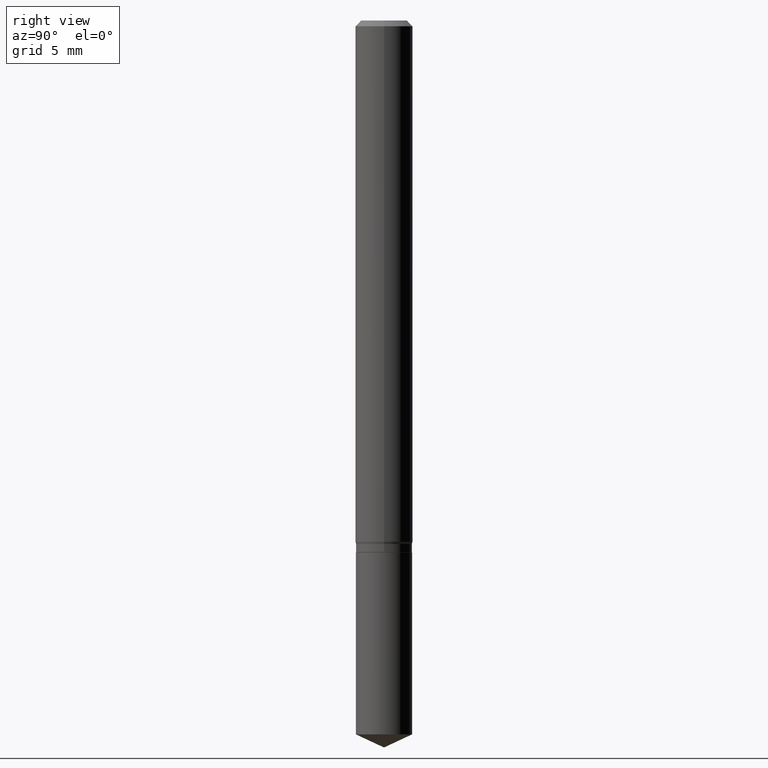
[diagram: clean part render]
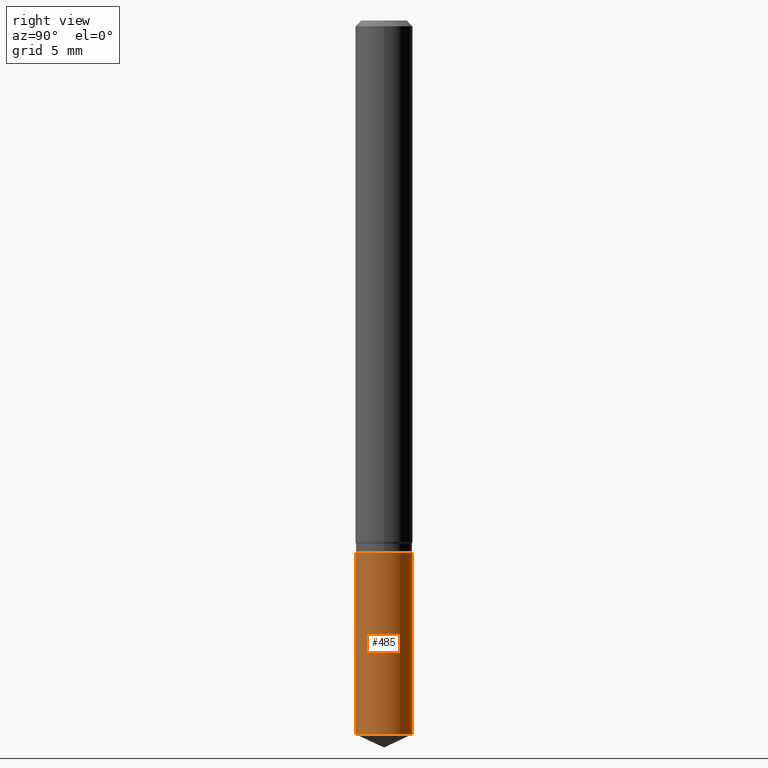
[diagram: same view with one face highlighted and labeled with its STEP entity id]
A machine part, right view. The second image highlights one B-rep face of the part: STEP entity #485.
In plain terms, the highlighted cylindrical surface (edge-blend (fillet) strip) has radius 1.4694 mm, axis along (-0, 0, 1).
Its self-contained STEP definition (entity closure, byte-faithful):
#1 = LINE ( 'NONE', #421, #56 ) ;
#19 = CARTESIAN_POINT ( 'NONE',  ( 2.676565608369631794E-29, -3.821426325363822773E-15, -1.094499999999999806 ) ) ;
#25 = FACE_OUTER_BOUND ( 'NONE', #400, .T. ) ;
#42 = EDGE_CURVE ( 'NONE', #450, #449, #1, .T. ) ;
#56 = VECTOR ( 'NONE', #243, 39.37007874015748143 ) ;
#69 = AXIS2_PLACEMENT_3D ( 'NONE', #19, #133, #212 ) ;
#84 = CARTESIAN_POINT ( 'NONE',  ( -4.039643909041237478E-16, -0.05785000000000382198, -1.094499999999999806 ) ) ;
#95 = VERTEX_POINT ( 'NONE', #164 ) ;
#126 = CARTESIAN_POINT ( 'NONE',  ( 4.110489726372537918E-16, 0.05784999999999485693, -1.469124101975733732 ) ) ;
#133 = DIRECTION ( 'NONE',  ( -2.445458899330790108E-29, 3.491495526022433205E-15, 1.000000000000000000 ) ) ;
#142 = EDGE_CURVE ( 'NONE', #386, #449, #479, .T. ) ;
#158 = DIRECTION ( 'NONE',  ( -2.445458899330790108E-29, 3.491495526022433599E-15, 1.000000000000000000 ) ) ;
#164 = CARTESIAN_POINT ( 'NONE',  ( -4.039643909041145280E-16, -0.05785000000000512649, -1.469124101975733065 ) ) ;
#191 = CARTESIAN_POINT ( 'NONE',  ( 2.676565608369631794E-29, -3.821426325363822773E-15, -1.094499999999999806 ) ) ;
#195 = EDGE_CURVE ( 'NONE', #95, #450, #251, .T. ) ;
#210 = CARTESIAN_POINT ( 'NONE',  ( 3.592693452449994614E-29, -5.129424701352268102E-15, -1.469124101975733288 ) ) ;
#212 = DIRECTION ( 'NONE',  ( -6.982962677686265922E-15, -1.000000000000000000, 2.361147790548196524E-15 ) ) ;
#243 = DIRECTION ( 'NONE',  ( -2.445458899330790108E-29, 3.491495526022433599E-15, 1.000000000000000000 ) ) ;
#251 = CIRCLE ( 'NONE', #388, 0.05784999999999999865 ) ;
#255 = DIRECTION ( 'NONE',  ( -6.982962677686265922E-15, -1.000000000000000000, 4.722295581096393049E-15 ) ) ;
#260 = EDGE_CURVE ( 'NONE', #95, #386, #457, .T. ) ;
#269 = AXIS2_PLACEMENT_3D ( 'NONE', #191, #434, #402 ) ;
#277 = VECTOR ( 'NONE', #158, 39.37007874015748143 ) ;
#279 = ORIENTED_EDGE ( 'NONE', *, *, #42, .T. ) ;
#331 = CARTESIAN_POINT ( 'NONE',  ( 4.110489726372538411E-16, 0.05784999999999617531, -1.094500000000000028 ) ) ;
#386 = VERTEX_POINT ( 'NONE', #84 ) ;
#388 = AXIS2_PLACEMENT_3D ( 'NONE', #210, #441, #255 ) ;
#390 = CARTESIAN_POINT ( 'NONE',  ( -4.039643909041237478E-16, -0.05785000000000382198, -1.094499999999999806 ) ) ;
#400 = EDGE_LOOP ( 'NONE', ( #419, #279, #468, #417 ) ) ;
#401 = CYLINDRICAL_SURFACE ( 'NONE', #69, 0.05784999999999999865 ) ;
#402 = DIRECTION ( 'NONE',  ( -6.982962677686265922E-15, -1.000000000000000000, 2.361147790548196524E-15 ) ) ;
#417 = ORIENTED_EDGE ( 'NONE', *, *, #260, .F. ) ;
#419 = ORIENTED_EDGE ( 'NONE', *, *, #195, .T. ) ;
#421 = CARTESIAN_POINT ( 'NONE',  ( 4.110489726372446213E-16, 0.05784999999999617531, -1.094500000000000028 ) ) ;
#434 = DIRECTION ( 'NONE',  ( -2.445458899330790108E-29, 3.491495526022433205E-15, 1.000000000000000000 ) ) ;
#441 = DIRECTION ( 'NONE',  ( -2.445458899330790108E-29, 3.491495526022433205E-15, 1.000000000000000000 ) ) ;
#449 = VERTEX_POINT ( 'NONE', #331 ) ;
#450 = VERTEX_POINT ( 'NONE', #126 ) ;
#457 = LINE ( 'NONE', #390, #277 ) ;
#468 = ORIENTED_EDGE ( 'NONE', *, *, #142, .F. ) ;
#479 = CIRCLE ( 'NONE', #269, 0.05784999999999999865 ) ;
#485 = ADVANCED_FACE ( 'NONE', ( #25 ), #401, .T. ) ;